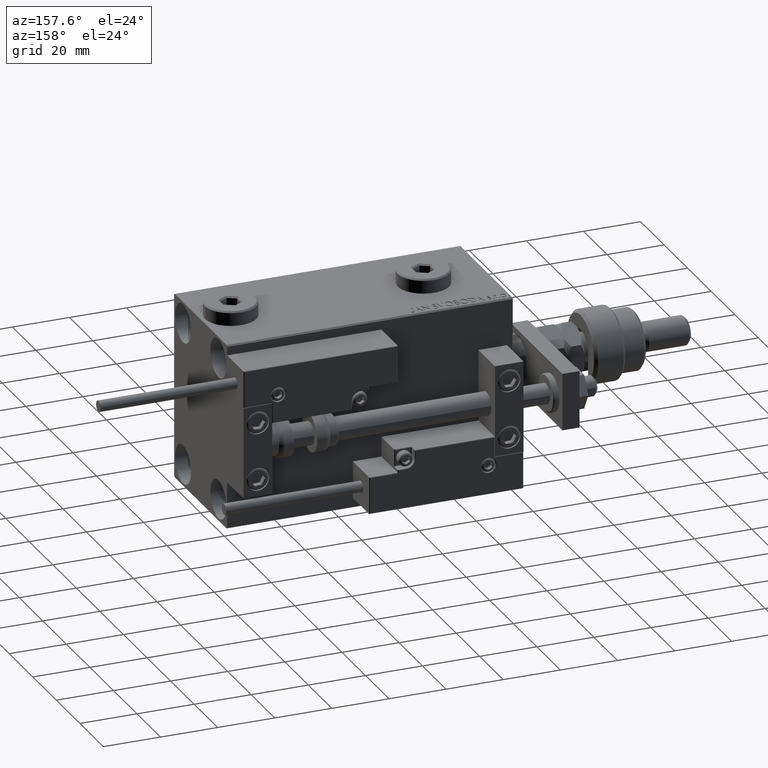
[diagram: clean part render]
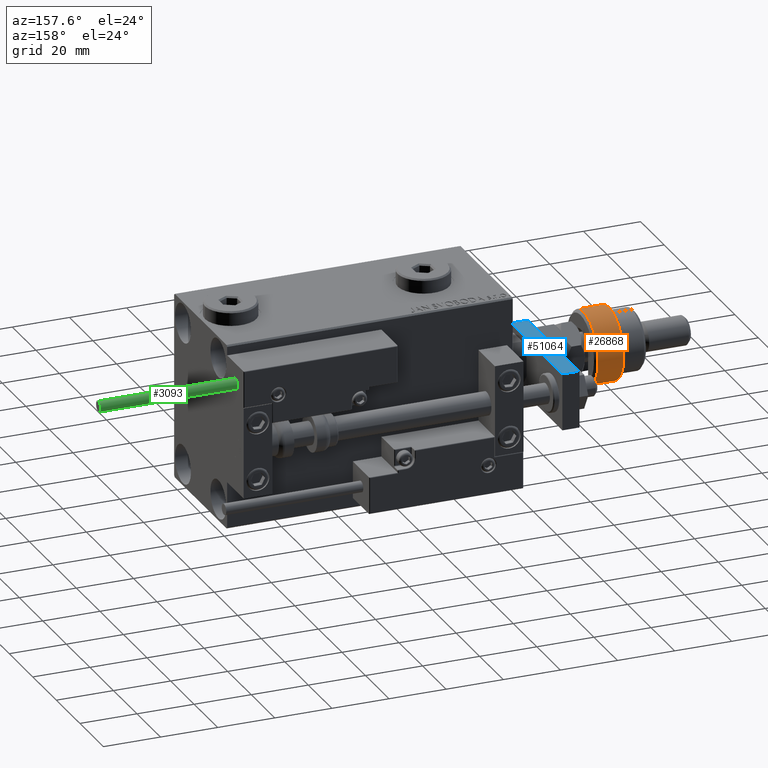
[diagram: same view with three faces highlighted in distinct colors, each labeled with its STEP entity id]
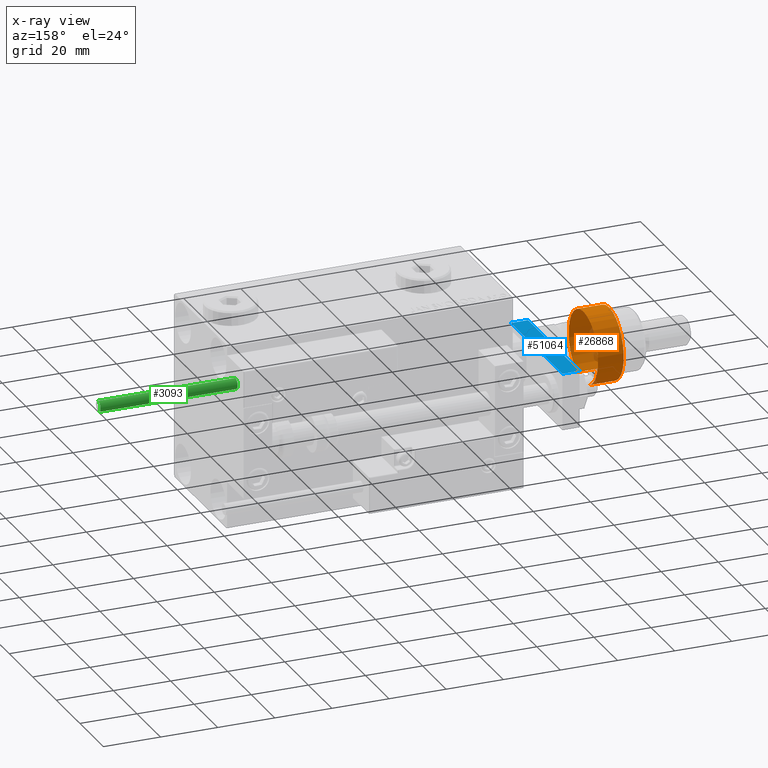
[diagram: x-ray of the same camera — body ghosted, the three highlighted faces saturated]
A machine part, auxiliary view with three faces highlighted in distinct colors.
The next image is the same camera in x-ray (body ghosted, the three faces saturated) — at least one of them is partly hidden behind the body in this view.
Their STEP definitions:

[orange] entity #26868 — the highlighted cylindrical surface (partial cylindrical patch) has radius 12.5 mm, axis along (1, -0, -0).
#1796 = DIRECTION ( 'NONE',  ( -0.000000000000000000, -0.000000000000000000, -1.000000000000000000 ) ) ;
#2697 = AXIS2_PLACEMENT_3D ( 'NONE', #6401, #44313, #23717 ) ;
#2830 = ORIENTED_EDGE ( 'NONE', *, *, #50670, .T. ) ;
#3172 = ORIENTED_EDGE ( 'NONE', *, *, #34876, .T. ) ;
#3596 = VERTEX_POINT ( 'NONE', #17712 ) ;
#6248 = ORIENTED_EDGE ( 'NONE', *, *, #39885, .T. ) ;
#6401 = CARTESIAN_POINT ( 'NONE',  ( 0.000000000000000000, 0.000000000000000000, 0.9999999999999956701 ) ) ;
#6710 = LINE ( 'NONE', #40229, #30129 ) ;
#6731 = VERTEX_POINT ( 'NONE', #11228 ) ;
#9494 = ORIENTED_EDGE ( 'NONE', *, *, #37851, .F. ) ;
#10333 = CIRCLE ( 'NONE', #29692, 12.50000000000000000 ) ;
#11228 = CARTESIAN_POINT ( 'NONE',  ( -11.22497216032182088, -5.500000000000007105, 0.9999999999999956701 ) ) ;
#11951 = CARTESIAN_POINT ( 'NONE',  ( 0.000000000000000000, 0.000000000000000000, 10.00000000000000000 ) ) ;
#17712 = CARTESIAN_POINT ( 'NONE',  ( -11.22497216032182443, 5.500000000000000000, 0.9999999999999956701 ) ) ;
#17989 = CARTESIAN_POINT ( 'NONE',  ( -11.22497216032182443, 5.500000000000000000, 10.00000000000000000 ) ) ;
#21275 = VERTEX_POINT ( 'NONE', #44210 ) ;
#21893 = CYLINDRICAL_SURFACE ( 'NONE', #50828, 12.50000000000000000 ) ;
#22430 = FACE_OUTER_BOUND ( 'NONE', #50145, .T. ) ;
#23512 = VECTOR ( 'NONE', #28129, 1000.000000000000000 ) ;
#23717 = DIRECTION ( 'NONE',  ( 1.000000000000000000, 0.000000000000000000, 0.000000000000000000 ) ) ;
#23798 = DIRECTION ( 'NONE',  ( 1.000000000000000000, 0.000000000000000000, 0.000000000000000000 ) ) ;
#24727 = EDGE_CURVE ( 'NONE', #52565, #3596, #10333, .T. ) ;
#26578 = DIRECTION ( 'NONE',  ( -0.000000000000000000, -0.000000000000000000, 1.000000000000000000 ) ) ;
#26868 = ADVANCED_FACE ( 'NONE', ( #22430 ), #21893, .T. ) ;
#28129 = DIRECTION ( 'NONE',  ( -0.000000000000000000, -0.000000000000000000, -1.000000000000000000 ) ) ;
#29692 = AXIS2_PLACEMENT_3D ( 'NONE', #35093, #26578, #30960 ) ;
#30129 = VECTOR ( 'NONE', #39958, 1000.000000000000000 ) ;
#30222 = CIRCLE ( 'NONE', #40746, 12.50000000000000000 ) ;
#30960 = DIRECTION ( 'NONE',  ( 1.000000000000000000, 0.000000000000000000, 0.000000000000000000 ) ) ;
#33684 = ORIENTED_EDGE ( 'NONE', *, *, #24727, .T. ) ;
#33688 = CARTESIAN_POINT ( 'NONE',  ( 12.50000000000000000, 0.000000000000000000, 0.9999999999999956701 ) ) ;
#34876 = EDGE_CURVE ( 'NONE', #6731, #52565, #45691, .T. ) ;
#35093 = CARTESIAN_POINT ( 'NONE',  ( 0.000000000000000000, 0.000000000000000000, 0.9999999999999956701 ) ) ;
#37851 = EDGE_CURVE ( 'NONE', #49953, #3596, #6710, .T. ) ;
#39885 = EDGE_CURVE ( 'NONE', #49953, #21275, #30222, .T. ) ;
#39958 = DIRECTION ( 'NONE',  ( -0.000000000000000000, -0.000000000000000000, -1.000000000000000000 ) ) ;
#40229 = CARTESIAN_POINT ( 'NONE',  ( -11.22497216032182443, 5.500000000000000000, 12.50000000000000000 ) ) ;
#40746 = AXIS2_PLACEMENT_3D ( 'NONE', #11951, #52650, #23798 ) ;
#43835 = CARTESIAN_POINT ( 'NONE',  ( 0.000000000000000000, 0.000000000000000000, 11.00000000000000000 ) ) ;
#44076 = LINE ( 'NONE', #49025, #23512 ) ;
#44210 = CARTESIAN_POINT ( 'NONE',  ( -11.22497216032182088, -5.500000000000007105, 10.00000000000000000 ) ) ;
#44313 = DIRECTION ( 'NONE',  ( -0.000000000000000000, -0.000000000000000000, 1.000000000000000000 ) ) ;
#45691 = CIRCLE ( 'NONE', #2697, 12.50000000000000000 ) ;
#47160 = DIRECTION ( 'NONE',  ( -1.000000000000000000, 0.000000000000000000, 0.000000000000000000 ) ) ;
#49025 = CARTESIAN_POINT ( 'NONE',  ( -11.22497216032182088, -5.500000000000007105, 12.50000000000000000 ) ) ;
#49953 = VERTEX_POINT ( 'NONE', #17989 ) ;
#50145 = EDGE_LOOP ( 'NONE', ( #9494, #6248, #2830, #3172, #33684 ) ) ;
#50670 = EDGE_CURVE ( 'NONE', #21275, #6731, #44076, .T. ) ;
#50828 = AXIS2_PLACEMENT_3D ( 'NONE', #43835, #1796, #47160 ) ;
#52565 = VERTEX_POINT ( 'NONE', #33688 ) ;
#52650 = DIRECTION ( 'NONE',  ( 0.000000000000000000, 0.000000000000000000, -1.000000000000000000 ) ) ;

[blue] entity #51064 — the highlighted planar face has unit normal (-0, -0, -1).
#667 = VECTOR ( 'NONE', #46373, 1000.000000000000000 ) ;
#1105 = DIRECTION ( 'NONE',  ( 7.228014483236695816E-17, -1.000000000000000000, 0.000000000000000000 ) ) ;
#2203 = DIRECTION ( 'NONE',  ( -7.228014483236695816E-17, 1.000000000000000000, 0.000000000000000000 ) ) ;
#3260 = CARTESIAN_POINT ( 'NONE',  ( 10.00000000000000178, 48.00000000000000000, 6.000000000000000000 ) ) ;
#5135 = DIRECTION ( 'NONE',  ( -7.228014483236695816E-17, 1.000000000000000000, 0.000000000000000000 ) ) ;
#5230 = CARTESIAN_POINT ( 'NONE',  ( 10.00000000000000533, 0.000000000000000000, 6.000000000000000000 ) ) ;
#5421 = VERTEX_POINT ( 'NONE', #3260 ) ;
#6474 = CARTESIAN_POINT ( 'NONE',  ( 10.00000000000000178, 48.00000000000000000, 6.000000000000000000 ) ) ;
#7045 = ORIENTED_EDGE ( 'NONE', *, *, #39773, .F. ) ;
#11738 = CARTESIAN_POINT ( 'NONE',  ( 10.00000000000000178, 48.00000000000000000, 0.000000000000000000 ) ) ;
#12076 = CARTESIAN_POINT ( 'NONE',  ( 10.00000000000000533, 4.239999999999986890, 0.000000000000000000 ) ) ;
#13474 = DIRECTION ( 'NONE',  ( -1.000000000000000000, -7.228014483236695816E-17, 0.000000000000000000 ) ) ;
#17870 = FACE_OUTER_BOUND ( 'NONE', #27883, .T. ) ;
#22346 = EDGE_CURVE ( 'NONE', #26478, #26719, #34531, .T. ) ;
#22370 = ORIENTED_EDGE ( 'NONE', *, *, #23957, .T. ) ;
#23245 = DIRECTION ( 'NONE',  ( -0.000000000000000000, -0.000000000000000000, -1.000000000000000000 ) ) ;
#23937 = CARTESIAN_POINT ( 'NONE',  ( 10.00000000000000533, 4.239999999999986890, 6.000000000000000000 ) ) ;
#23957 = EDGE_CURVE ( 'NONE', #36995, #26478, #29611, .T. ) ;
#24036 = VECTOR ( 'NONE', #23245, 1000.000000000000000 ) ;
#26018 = CARTESIAN_POINT ( 'NONE',  ( 10.00000000000000533, 0.000000000000000000, 0.000000000000000000 ) ) ;
#26478 = VERTEX_POINT ( 'NONE', #12076 ) ;
#26719 = VERTEX_POINT ( 'NONE', #11738 ) ;
#27883 = EDGE_LOOP ( 'NONE', ( #49725, #22370, #45447, #7045 ) ) ;
#29611 = LINE ( 'NONE', #23937, #667 ) ;
#31323 = LINE ( 'NONE', #51694, #37816 ) ;
#32199 = VECTOR ( 'NONE', #5135, 1000.000000000000000 ) ;
#33958 = EDGE_CURVE ( 'NONE', #36995, #5421, #31323, .T. ) ;
#34531 = LINE ( 'NONE', #26018, #32199 ) ;
#36995 = VERTEX_POINT ( 'NONE', #42062 ) ;
#37816 = VECTOR ( 'NONE', #2203, 1000.000000000000000 ) ;
#39773 = EDGE_CURVE ( 'NONE', #5421, #26719, #44120, .T. ) ;
#42062 = CARTESIAN_POINT ( 'NONE',  ( 10.00000000000000533, 4.239999999999986890, 6.000000000000000000 ) ) ;
#44120 = LINE ( 'NONE', #6474, #24036 ) ;
#45447 = ORIENTED_EDGE ( 'NONE', *, *, #22346, .T. ) ;
#46373 = DIRECTION ( 'NONE',  ( 0.000000000000000000, 0.000000000000000000, -1.000000000000000000 ) ) ;
#47004 = PLANE ( 'NONE',  #51603 ) ;
#49725 = ORIENTED_EDGE ( 'NONE', *, *, #33958, .F. ) ;
#51064 = ADVANCED_FACE ( 'NONE', ( #17870 ), #47004, .F. ) ;
#51603 = AXIS2_PLACEMENT_3D ( 'NONE', #5230, #13474, #1105 ) ;
#51694 = CARTESIAN_POINT ( 'NONE',  ( 10.00000000000000533, 0.000000000000000000, 6.000000000000000000 ) ) ;

[green] entity #3093 — the highlighted cylindrical surface (edge-blend (fillet) strip) has radius 1.9 mm, axis along (-1, -0, 0).
#280 = EDGE_LOOP ( 'NONE', ( #18334, #32720, #14251, #47156 ) ) ;
#796 = DIRECTION ( 'NONE',  ( -0.000000000000000000, -0.000000000000000000, -1.000000000000000000 ) ) ;
#3093 = ADVANCED_FACE ( 'NONE', ( #19606 ), #16849, .T. ) ;
#3667 = CARTESIAN_POINT ( 'NONE',  ( 0.000000000000000000, 0.000000000000000000, 48.00000000000000000 ) ) ;
#4720 = CARTESIAN_POINT ( 'NONE',  ( 0.000000000000000000, 0.000000000000000000, 0.000000000000000000 ) ) ;
#5748 = CARTESIAN_POINT ( 'NONE',  ( 1.899999999999999467, 2.326828918379970872E-16, 48.00000000000000000 ) ) ;
#6168 = AXIS2_PLACEMENT_3D ( 'NONE', #3667, #54227, #16570 ) ;
#8631 = EDGE_CURVE ( 'NONE', #18682, #14241, #38038, .T. ) ;
#9904 = VERTEX_POINT ( 'NONE', #35643 ) ;
#13725 = AXIS2_PLACEMENT_3D ( 'NONE', #47663, #43532, #25974 ) ;
#14241 = VERTEX_POINT ( 'NONE', #53118 ) ;
#14251 = ORIENTED_EDGE ( 'NONE', *, *, #8631, .T. ) ;
#14276 = DIRECTION ( 'NONE',  ( 0.000000000000000000, 0.000000000000000000, 1.000000000000000000 ) ) ;
#16570 = DIRECTION ( 'NONE',  ( -1.000000000000000000, 0.000000000000000000, 0.000000000000000000 ) ) ;
#16849 = CYLINDRICAL_SURFACE ( 'NONE', #6168, 1.899999999999999467 ) ;
#16857 = CARTESIAN_POINT ( 'NONE',  ( -1.899999999999999467, 0.000000000000000000, 48.00000000000000000 ) ) ;
#17832 = AXIS2_PLACEMENT_3D ( 'NONE', #4720, #14276, #18413 ) ;
#18334 = ORIENTED_EDGE ( 'NONE', *, *, #20540, .F. ) ;
#18413 = DIRECTION ( 'NONE',  ( 1.000000000000000000, 0.000000000000000000, 0.000000000000000000 ) ) ;
#18682 = VERTEX_POINT ( 'NONE', #44871 ) ;
#19606 = FACE_OUTER_BOUND ( 'NONE', #280, .T. ) ;
#20540 = EDGE_CURVE ( 'NONE', #27237, #9904, #25158, .T. ) ;
#25158 = CIRCLE ( 'NONE', #13725, 1.899999999999999467 ) ;
#25884 = VECTOR ( 'NONE', #796, 1000.000000000000000 ) ;
#25974 = DIRECTION ( 'NONE',  ( 1.000000000000000000, 0.000000000000000000, 0.000000000000000000 ) ) ;
#27071 = LINE ( 'NONE', #29935, #25884 ) ;
#27237 = VERTEX_POINT ( 'NONE', #5748 ) ;
#29935 = CARTESIAN_POINT ( 'NONE',  ( 1.899999999999999467, 2.326828918379970872E-16, 48.00000000000000000 ) ) ;
#31393 = EDGE_CURVE ( 'NONE', #9904, #14241, #42405, .T. ) ;
#32720 = ORIENTED_EDGE ( 'NONE', *, *, #43983, .T. ) ;
#33601 = DIRECTION ( 'NONE',  ( -0.000000000000000000, -0.000000000000000000, -1.000000000000000000 ) ) ;
#35643 = CARTESIAN_POINT ( 'NONE',  ( -1.899999999999999467, 0.000000000000000000, 48.00000000000000000 ) ) ;
#38038 = CIRCLE ( 'NONE', #17832, 1.899999999999999467 ) ;
#42405 = LINE ( 'NONE', #16857, #46605 ) ;
#43532 = DIRECTION ( 'NONE',  ( 0.000000000000000000, 0.000000000000000000, 1.000000000000000000 ) ) ;
#43983 = EDGE_CURVE ( 'NONE', #27237, #18682, #27071, .T. ) ;
#44871 = CARTESIAN_POINT ( 'NONE',  ( 1.899999999999999467, 2.326828918379970872E-16, 0.000000000000000000 ) ) ;
#46605 = VECTOR ( 'NONE', #33601, 1000.000000000000000 ) ;
#47156 = ORIENTED_EDGE ( 'NONE', *, *, #31393, .F. ) ;
#47663 = CARTESIAN_POINT ( 'NONE',  ( 0.000000000000000000, 0.000000000000000000, 48.00000000000000000 ) ) ;
#53118 = CARTESIAN_POINT ( 'NONE',  ( -1.899999999999999467, 0.000000000000000000, 0.000000000000000000 ) ) ;
#54227 = DIRECTION ( 'NONE',  ( -0.000000000000000000, -0.000000000000000000, -1.000000000000000000 ) ) ;